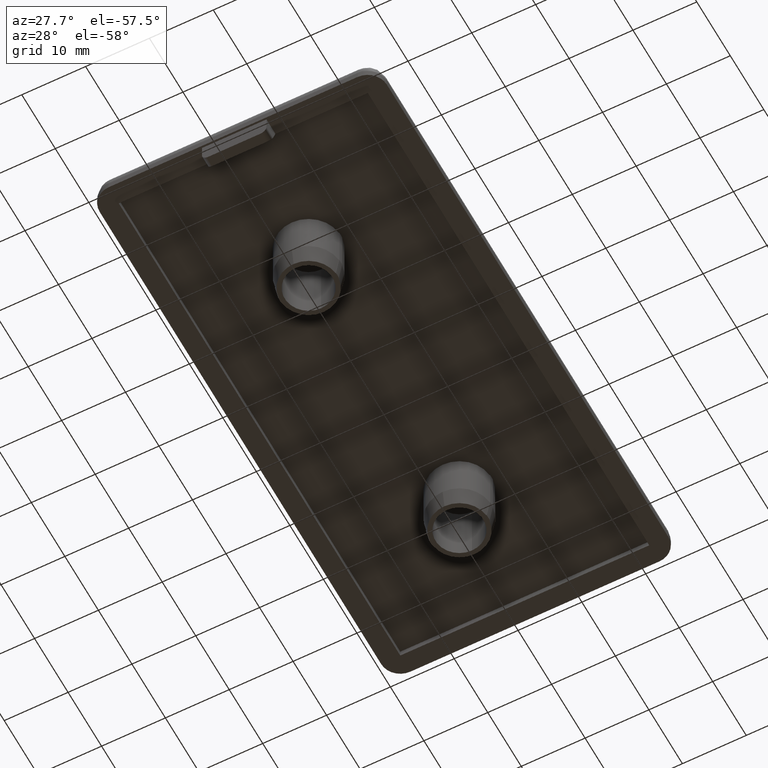
[diagram: clean part render]
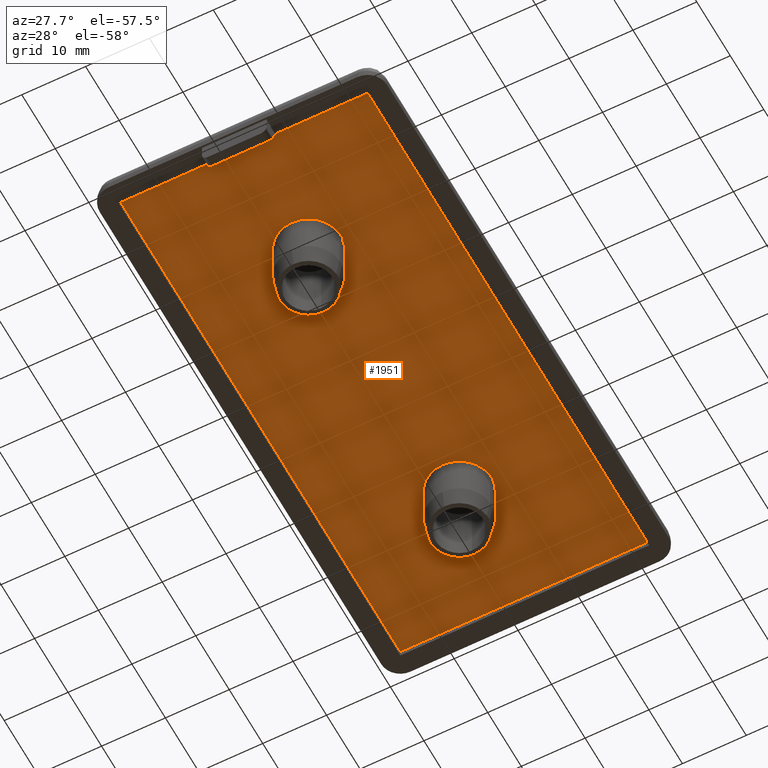
[diagram: same view with one face highlighted and labeled with its STEP entity id]
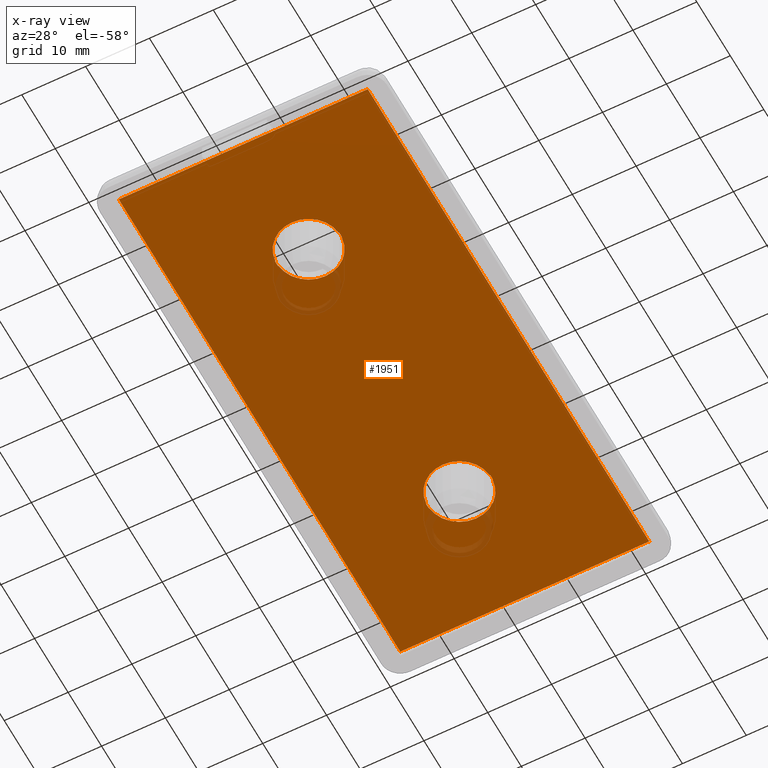
[diagram: x-ray of the same camera — body ghosted, the highlighted face saturated]
A machine part, auxiliary view. The second image highlights one B-rep face of the part: STEP entity #1951.
The next image is the same camera in x-ray: the body ghosted, the highlighted face saturated — about 1% of this face is hidden behind the body in this view.
In plain terms, the highlighted planar face has unit normal (-0, -0, -1).
Its self-contained STEP definition (entity closure, byte-faithful):
#42 = DIRECTION ( 'NONE',  ( 0.0000000000000000000, 1.000000000000000000, -1.288160997012470100E-016 ) ) ;
#46 = ORIENTED_EDGE ( 'NONE', *, *, #1306, .T. ) ;
#48 = CARTESIAN_POINT ( 'NONE',  ( 5.029910535983725900, 22.94999999999999900, 0.9999999999999974500 ) ) ;
#82 = LINE ( 'NONE', #1226, #311 ) ;
#83 = CARTESIAN_POINT ( 'NONE',  ( -19.50000000000000000, -41.99999999999999300, 1.000000000000000000 ) ) ;
#90 = EDGE_CURVE ( 'NONE', #1808, #1095, #420, .T. ) ;
#94 = VERTEX_POINT ( 'NONE', #48 ) ;
#130 = VECTOR ( 'NONE', #158, 1000.000000000000000 ) ;
#133 = CIRCLE ( 'NONE', #1886, 5.049999999999998900 ) ;
#145 = EDGE_LOOP ( 'NONE', ( #156, #1292, #974, #799, #46, #515, #1112, #486, #818 ) ) ;
#156 = ORIENTED_EDGE ( 'NONE', *, *, #1120, .T. ) ;
#158 = DIRECTION ( 'NONE',  ( 1.000000000000000000, -2.220446049250310100E-016, -0.0000000000000000000 ) ) ;
#163 = CARTESIAN_POINT ( 'NONE',  ( -3.663735981263019700E-014, 22.50000000000000000, 0.9999999999999974500 ) ) ;
#172 = DIRECTION ( 'NONE',  ( -2.220446049250310100E-016, -1.000000000000000000, -0.0000000000000000000 ) ) ;
#173 = CARTESIAN_POINT ( 'NONE',  ( -4.979708826829150500, 22.05000000000000100, 0.9999999999999974500 ) ) ;
#181 = VERTEX_POINT ( 'NONE', #1476 ) ;
#188 = EDGE_CURVE ( 'NONE', #181, #2040, #467, .T. ) ;
#198 = VERTEX_POINT ( 'NONE', #1014 ) ;
#211 = LINE ( 'NONE', #470, #130 ) ;
#212 = VECTOR ( 'NONE', #1871, 1000.000000000000000 ) ;
#215 = DIRECTION ( 'NONE',  ( -8.881784197001252300E-016, 1.000000000000000000, -1.301042606982605100E-016 ) ) ;
#226 = ORIENTED_EDGE ( 'NONE', *, *, #1955, .T. ) ;
#232 = CARTESIAN_POINT ( 'NONE',  ( -4.979708826829149600, -22.94999999999999900, 1.000000000000000900 ) ) ;
#236 = VECTOR ( 'NONE', #418, 1000.000000000000000 ) ;
#247 = VERTEX_POINT ( 'NONE', #1512 ) ;
#255 = VECTOR ( 'NONE', #804, 1000.000000000000000 ) ;
#260 = VECTOR ( 'NONE', #372, 1000.000000000000000 ) ;
#267 = ORIENTED_EDGE ( 'NONE', *, *, #1474, .T. ) ;
#272 = CARTESIAN_POINT ( 'NONE',  ( -4.979708826829193100, 22.94999999999999900, 0.9999999999999974500 ) ) ;
#279 = EDGE_CURVE ( 'NONE', #1103, #247, #1321, .T. ) ;
#289 = EDGE_CURVE ( 'NONE', #680, #1296, #1601, .T. ) ;
#290 = VECTOR ( 'NONE', #899, 1000.000000000000000 ) ;
#311 = VECTOR ( 'NONE', #1520, 1000.000000000000000 ) ;
#315 = CARTESIAN_POINT ( 'NONE',  ( 19.50000000000000000, -42.00000000000000000, 0.9999999999999986700 ) ) ;
#332 = FACE_BOUND ( 'NONE', #1161, .T. ) ;
#335 = EDGE_CURVE ( 'NONE', #1730, #516, #1747, .T. ) ;
#372 = DIRECTION ( 'NONE',  ( 2.633475448292409800E-016, 1.000000000000000000, -0.0000000000000000000 ) ) ;
#396 = DIRECTION ( 'NONE',  ( 2.719262146893779900E-032, 1.224646799147350000E-016, 1.000000000000000000 ) ) ;
#406 = DIRECTION ( 'NONE',  ( -1.000000000000000000, 3.110047831802520200E-016, -0.0000000000000000000 ) ) ;
#408 = AXIS2_PLACEMENT_3D ( 'NONE', #163, #1609, #1285 ) ;
#409 = CARTESIAN_POINT ( 'NONE',  ( -4.979708826829139800, 22.05000000000000100, 0.9999999999999974500 ) ) ;
#418 = DIRECTION ( 'NONE',  ( 1.000000000000000000, -2.220446049250310100E-016, -0.0000000000000000000 ) ) ;
#420 = LINE ( 'NONE', #1644, #255 ) ;
#425 = VERTEX_POINT ( 'NONE', #1542 ) ;
#430 = LINE ( 'NONE', #409, #236 ) ;
#448 = DIRECTION ( 'NONE',  ( 2.719262146893779900E-032, 1.224646799147350000E-016, 1.000000000000000000 ) ) ;
#454 = CARTESIAN_POINT ( 'NONE',  ( -5.029910535983716200, 22.05000000000000100, 0.9999999999999974500 ) ) ;
#456 = VECTOR ( 'NONE', #560, 1000.000000000000000 ) ;
#457 = CIRCLE ( 'NONE', #923, 5.000000000000022200 ) ;
#467 = LINE ( 'NONE', #1999, #1270 ) ;
#470 = CARTESIAN_POINT ( 'NONE',  ( 19.50000000000000000, 42.00000000000000000, 0.9999999999999950000 ) ) ;
#477 = CARTESIAN_POINT ( 'NONE',  ( 5.029910535983730400, 22.05000000000000100, 0.9999999999999974500 ) ) ;
#484 = CARTESIAN_POINT ( 'NONE',  ( 19.50000000000000000, -42.00000000000000000, 0.9999999999999950000 ) ) ;
#486 = ORIENTED_EDGE ( 'NONE', *, *, #1425, .F. ) ;
#513 = CARTESIAN_POINT ( 'NONE',  ( -3.663735981263019700E-014, 22.50000000000000000, 0.9999999999999974500 ) ) ;
#515 = ORIENTED_EDGE ( 'NONE', *, *, #1567, .T. ) ;
#516 = VERTEX_POINT ( 'NONE', #1269 ) ;
#517 = ORIENTED_EDGE ( 'NONE', *, *, #690, .T. ) ;
#532 = CIRCLE ( 'NONE', #946, 5.050000000000040700 ) ;
#539 = CARTESIAN_POINT ( 'NONE',  ( -4.996003610813199700E-015, -22.50000000000000000, 1.000000000000000900 ) ) ;
#560 = DIRECTION ( 'NONE',  ( 1.000000000000000000, -2.220446049250310100E-016, -0.0000000000000000000 ) ) ;
#574 = ORIENTED_EDGE ( 'NONE', *, *, #1176, .T. ) ;
#592 = CARTESIAN_POINT ( 'NONE',  ( 19.50000000000000000, -42.00000000000000000, 1.000000000000000000 ) ) ;
#656 = DIRECTION ( 'NONE',  ( 0.0000000000000000000, 1.000000000000000000, -1.288160997012480700E-016 ) ) ;
#680 = VERTEX_POINT ( 'NONE', #173 ) ;
#690 = EDGE_CURVE ( 'NONE', #198, #921, #809, .T. ) ;
#695 = PLANE ( 'NONE',  #1816 ) ;
#702 = DIRECTION ( 'NONE',  ( 0.0000000000000000000, 1.000000000000000000, -1.301042606982610500E-016 ) ) ;
#741 = ORIENTED_EDGE ( 'NONE', *, *, #1458, .T. ) ;
#742 = CARTESIAN_POINT ( 'NONE',  ( -3.663735981263019700E-014, 27.50000000000002100, 0.9999999999999967800 ) ) ;
#770 = VERTEX_POINT ( 'NONE', #1462 ) ;
#776 = DIRECTION ( 'NONE',  ( 0.0000000000000000000, 1.000000000000000000, -1.301042606982605100E-016 ) ) ;
#799 = ORIENTED_EDGE ( 'NONE', *, *, #1992, .T. ) ;
#804 = DIRECTION ( 'NONE',  ( -1.000000000000000000, -1.379982275882160000E-013, -0.0000000000000000000 ) ) ;
#809 = CIRCLE ( 'NONE', #408, 5.000000000000022200 ) ;
#818 = ORIENTED_EDGE ( 'NONE', *, *, #335, .T. ) ;
#821 = AXIS2_PLACEMENT_3D ( 'NONE', #539, #2020, #1654 ) ;
#829 = CARTESIAN_POINT ( 'NONE',  ( 4.979708826829077700, 22.05000000000000100, 0.9999999999999974500 ) ) ;
#842 = ORIENTED_EDGE ( 'NONE', *, *, #1972, .T. ) ;
#848 = DIRECTION ( 'NONE',  ( 0.0000000000000000000, 1.000000000000000000, -1.224646799147350000E-016 ) ) ;
#870 = DIRECTION ( 'NONE',  ( -2.719262146893779900E-032, -1.224646799147350000E-016, -1.000000000000000000 ) ) ;
#874 = AXIS2_PLACEMENT_3D ( 'NONE', #1749, #448, #776 ) ;
#890 = DIRECTION ( 'NONE',  ( 0.0000000000000000000, 1.000000000000000000, -1.301042606982599700E-016 ) ) ;
#899 = DIRECTION ( 'NONE',  ( -1.000000000000000000, 1.384423167980659900E-013, -0.0000000000000000000 ) ) ;
#914 = DIRECTION ( 'NONE',  ( 2.719262146893779900E-032, 1.224646799147350000E-016, 1.000000000000000000 ) ) ;
#921 = VERTEX_POINT ( 'NONE', #742 ) ;
#923 = AXIS2_PLACEMENT_3D ( 'NONE', #1537, #914, #890 ) ;
#928 = AXIS2_PLACEMENT_3D ( 'NONE', #1433, #1252, #1265 ) ;
#934 = LINE ( 'NONE', #1896, #212 ) ;
#946 = AXIS2_PLACEMENT_3D ( 'NONE', #513, #999, #42 ) ;
#974 = ORIENTED_EDGE ( 'NONE', *, *, #1668, .F. ) ;
#977 = ORIENTED_EDGE ( 'NONE', *, *, #1726, .F. ) ;
#999 = DIRECTION ( 'NONE',  ( -2.719262146893779900E-032, -1.224646799147350000E-016, -1.000000000000000000 ) ) ;
#1002 = CARTESIAN_POINT ( 'NONE',  ( -4.996003610813199700E-015, -22.50000000000000000, 1.000000000000000900 ) ) ;
#1014 = CARTESIAN_POINT ( 'NONE',  ( 4.979708826829119400, 22.95000000000000300, 0.9999999999999974500 ) ) ;
#1051 = VERTEX_POINT ( 'NONE', #272 ) ;
#1058 = CIRCLE ( 'NONE', #928, 5.000000000000000900 ) ;
#1061 = VECTOR ( 'NONE', #406, 1000.000000000000000 ) ;
#1074 = VERTEX_POINT ( 'NONE', #1709 ) ;
#1086 = LINE ( 'NONE', #1212, #290 ) ;
#1095 = VERTEX_POINT ( 'NONE', #1593 ) ;
#1100 = VERTEX_POINT ( 'NONE', #315 ) ;
#1103 = VERTEX_POINT ( 'NONE', #454 ) ;
#1112 = ORIENTED_EDGE ( 'NONE', *, *, #90, .T. ) ;
#1118 = CIRCLE ( 'NONE', #874, 5.000000000000000900 ) ;
#1120 = EDGE_CURVE ( 'NONE', #516, #181, #1058, .T. ) ;
#1147 = CARTESIAN_POINT ( 'NONE',  ( -5.029910535983726800, -22.94999999999999900, 1.000000000000000900 ) ) ;
#1153 = ORIENTED_EDGE ( 'NONE', *, *, #1203, .T. ) ;
#1155 = CARTESIAN_POINT ( 'NONE',  ( -4.996003610813199700E-015, -22.50000000000000000, 1.000000000000000900 ) ) ;
#1161 = EDGE_LOOP ( 'NONE', ( #574, #977, #842, #517, #267, #741, #1312, #1174, #1688 ) ) ;
#1172 = AXIS2_PLACEMENT_3D ( 'NONE', #1523, #1677, #1193 ) ;
#1173 = CIRCLE ( 'NONE', #821, 5.049999999999998900 ) ;
#1174 = ORIENTED_EDGE ( 'NONE', *, *, #2011, .T. ) ;
#1176 = EDGE_CURVE ( 'NONE', #1296, #1998, #1846, .T. ) ;
#1189 = FACE_BOUND ( 'NONE', #145, .T. ) ;
#1193 = DIRECTION ( 'NONE',  ( 0.0000000000000000000, 1.000000000000000000, -1.288160997012490600E-016 ) ) ;
#1203 = EDGE_CURVE ( 'NONE', #1518, #1100, #1333, .T. ) ;
#1212 = CARTESIAN_POINT ( 'NONE',  ( 5.029910535983719700, -22.05000000000000100, 1.000000000000000900 ) ) ;
#1226 = CARTESIAN_POINT ( 'NONE',  ( 5.029910535983730400, 22.94999999999999900, 0.9999999999999974500 ) ) ;
#1238 = EDGE_CURVE ( 'NONE', #1074, #1518, #211, .T. ) ;
#1252 = DIRECTION ( 'NONE',  ( 2.719262146893779900E-032, 1.224646799147350000E-016, 1.000000000000000000 ) ) ;
#1262 = EDGE_LOOP ( 'NONE', ( #1344, #1153, #1885, #226 ) ) ;
#1265 = DIRECTION ( 'NONE',  ( 8.881784197001250400E-016, 1.000000000000000000, -1.301042606982605100E-016 ) ) ;
#1269 = CARTESIAN_POINT ( 'NONE',  ( -4.979708826829139800, -22.94999999999999900, 1.000000000000000900 ) ) ;
#1270 = VECTOR ( 'NONE', #1469, 1000.000000000000000 ) ;
#1285 = DIRECTION ( 'NONE',  ( 0.0000000000000000000, 1.000000000000000000, -1.301042606982599700E-016 ) ) ;
#1292 = ORIENTED_EDGE ( 'NONE', *, *, #188, .T. ) ;
#1296 = VERTEX_POINT ( 'NONE', #829 ) ;
#1306 = EDGE_CURVE ( 'NONE', #1371, #770, #1687, .T. ) ;
#1309 = DIRECTION ( 'NONE',  ( 2.719262146893779900E-032, 1.224646799147350000E-016, 1.000000000000000000 ) ) ;
#1312 = ORIENTED_EDGE ( 'NONE', *, *, #279, .F. ) ;
#1321 = CIRCLE ( 'NONE', #1172, 5.049999999999960700 ) ;
#1333 = LINE ( 'NONE', #484, #1744 ) ;
#1337 = CARTESIAN_POINT ( 'NONE',  ( -19.50000000000000000, -42.00000000000000000, 1.000000000000000000 ) ) ;
#1344 = ORIENTED_EDGE ( 'NONE', *, *, #1238, .T. ) ;
#1362 = AXIS2_PLACEMENT_3D ( 'NONE', #1002, #1309, #215 ) ;
#1365 = CARTESIAN_POINT ( 'NONE',  ( 5.029910535983725100, 22.05000000000000100, 0.9999999999999974500 ) ) ;
#1371 = VERTEX_POINT ( 'NONE', #1840 ) ;
#1425 = EDGE_CURVE ( 'NONE', #1730, #1095, #1173, .T. ) ;
#1433 = CARTESIAN_POINT ( 'NONE',  ( -4.996003610813199700E-015, -22.50000000000000000, 1.000000000000000900 ) ) ;
#1454 = AXIS2_PLACEMENT_3D ( 'NONE', #1500, #396, #702 ) ;
#1458 = EDGE_CURVE ( 'NONE', #1051, #247, #934, .T. ) ;
#1462 = CARTESIAN_POINT ( 'NONE',  ( -4.996003610813199700E-015, -17.49999999999999600, 1.000000000000000200 ) ) ;
#1464 = EDGE_CURVE ( 'NONE', #1100, #2029, #1533, .T. ) ;
#1469 = DIRECTION ( 'NONE',  ( 1.000000000000000000, 1.379982275882160000E-013, -0.0000000000000000000 ) ) ;
#1474 = EDGE_CURVE ( 'NONE', #921, #1051, #457, .T. ) ;
#1476 = CARTESIAN_POINT ( 'NONE',  ( 4.979708826829130100, -22.95000000000000300, 1.000000000000000900 ) ) ;
#1500 = CARTESIAN_POINT ( 'NONE',  ( -3.663735981263019700E-014, 22.50000000000000000, 0.9999999999999974500 ) ) ;
#1507 = FACE_OUTER_BOUND ( 'NONE', #1262, .T. ) ;
#1512 = CARTESIAN_POINT ( 'NONE',  ( -5.029910535983717100, 22.94999999999999200, 0.9999999999999974500 ) ) ;
#1518 = VERTEX_POINT ( 'NONE', #1550 ) ;
#1520 = DIRECTION ( 'NONE',  ( -1.000000000000000000, 1.384423167980659900E-013, -0.0000000000000000000 ) ) ;
#1523 = CARTESIAN_POINT ( 'NONE',  ( -3.663735981263019700E-014, 22.50000000000000000, 0.9999999999999974500 ) ) ;
#1533 = LINE ( 'NONE', #592, #1061 ) ;
#1537 = CARTESIAN_POINT ( 'NONE',  ( -3.663735981263019700E-014, 22.50000000000000000, 0.9999999999999974500 ) ) ;
#1542 = CARTESIAN_POINT ( 'NONE',  ( 5.029910535983716200, -22.05000000000000100, 1.000000000000000900 ) ) ;
#1550 = CARTESIAN_POINT ( 'NONE',  ( 19.50000000000000400, 42.00000000000000000, 0.9999999999999924500 ) ) ;
#1567 = EDGE_CURVE ( 'NONE', #770, #1808, #1118, .T. ) ;
#1593 = CARTESIAN_POINT ( 'NONE',  ( -5.029910535983726800, -22.05000000000000800, 1.000000000000000900 ) ) ;
#1601 = CIRCLE ( 'NONE', #1454, 4.999999999999980500 ) ;
#1609 = DIRECTION ( 'NONE',  ( 2.719262146893779900E-032, 1.224646799147350000E-016, 1.000000000000000000 ) ) ;
#1610 = VECTOR ( 'NONE', #1952, 1000.000000000000000 ) ;
#1623 = DIRECTION ( 'NONE',  ( -2.719262146893779900E-032, -1.224646799147350000E-016, -1.000000000000000000 ) ) ;
#1644 = CARTESIAN_POINT ( 'NONE',  ( -4.979708826829149600, -22.05000000000000100, 1.000000000000000900 ) ) ;
#1654 = DIRECTION ( 'NONE',  ( 0.0000000000000000000, 1.000000000000000000, -1.288160997012480700E-016 ) ) ;
#1668 = EDGE_CURVE ( 'NONE', #425, #2040, #133, .T. ) ;
#1677 = DIRECTION ( 'NONE',  ( -2.719262146893779900E-032, -1.224646799147350000E-016, -1.000000000000000000 ) ) ;
#1687 = CIRCLE ( 'NONE', #1362, 5.000000000000000900 ) ;
#1688 = ORIENTED_EDGE ( 'NONE', *, *, #289, .T. ) ;
#1709 = CARTESIAN_POINT ( 'NONE',  ( -19.49999999999999600, 42.00000000000000700, 0.9999999999999935600 ) ) ;
#1726 = EDGE_CURVE ( 'NONE', #94, #1998, #532, .T. ) ;
#1730 = VERTEX_POINT ( 'NONE', #1147 ) ;
#1744 = VECTOR ( 'NONE', #172, 1000.000000000000000 ) ;
#1747 = LINE ( 'NONE', #232, #456 ) ;
#1749 = CARTESIAN_POINT ( 'NONE',  ( -4.996003610813199700E-015, -22.50000000000000000, 1.000000000000000900 ) ) ;
#1808 = VERTEX_POINT ( 'NONE', #1985 ) ;
#1816 = AXIS2_PLACEMENT_3D ( 'NONE', #1824, #870, #848 ) ;
#1824 = CARTESIAN_POINT ( 'NONE',  ( -19.50000000000000000, -42.00000000000000000, 1.000000000000000000 ) ) ;
#1840 = CARTESIAN_POINT ( 'NONE',  ( 4.979708826829130100, -22.04999999999999700, 1.000000000000000900 ) ) ;
#1846 = LINE ( 'NONE', #477, #1610 ) ;
#1866 = CARTESIAN_POINT ( 'NONE',  ( 5.029910535983716200, -22.94999999999999900, 1.000000000000000900 ) ) ;
#1871 = DIRECTION ( 'NONE',  ( -1.000000000000000000, -1.379982275882160000E-013, -0.0000000000000000000 ) ) ;
#1885 = ORIENTED_EDGE ( 'NONE', *, *, #1464, .T. ) ;
#1886 = AXIS2_PLACEMENT_3D ( 'NONE', #1155, #1623, #656 ) ;
#1896 = CARTESIAN_POINT ( 'NONE',  ( -4.979708826829139800, 22.94999999999999900, 0.9999999999999974500 ) ) ;
#1933 = LINE ( 'NONE', #1337, #260 ) ;
#1951 = ADVANCED_FACE ( 'NONE', ( #332, #1189, #1507 ), #695, .T. ) ;
#1952 = DIRECTION ( 'NONE',  ( 1.000000000000000000, 1.379982275882160000E-013, -0.0000000000000000000 ) ) ;
#1955 = EDGE_CURVE ( 'NONE', #2029, #1074, #1933, .T. ) ;
#1972 = EDGE_CURVE ( 'NONE', #94, #198, #82, .T. ) ;
#1985 = CARTESIAN_POINT ( 'NONE',  ( -4.979708826829140700, -22.05000000000000100, 1.000000000000000900 ) ) ;
#1992 = EDGE_CURVE ( 'NONE', #425, #1371, #1086, .T. ) ;
#1998 = VERTEX_POINT ( 'NONE', #1365 ) ;
#1999 = CARTESIAN_POINT ( 'NONE',  ( 5.029910535983719700, -22.94999999999999900, 1.000000000000000900 ) ) ;
#2011 = EDGE_CURVE ( 'NONE', #1103, #680, #430, .T. ) ;
#2020 = DIRECTION ( 'NONE',  ( -2.719262146893779900E-032, -1.224646799147350000E-016, -1.000000000000000000 ) ) ;
#2029 = VERTEX_POINT ( 'NONE', #83 ) ;
#2040 = VERTEX_POINT ( 'NONE', #1866 ) ;